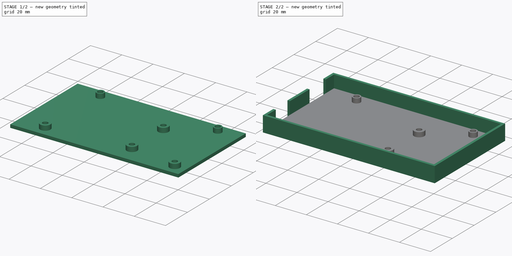
[diagram: build sequence overview — one tinted view per stage of 2, left to right]
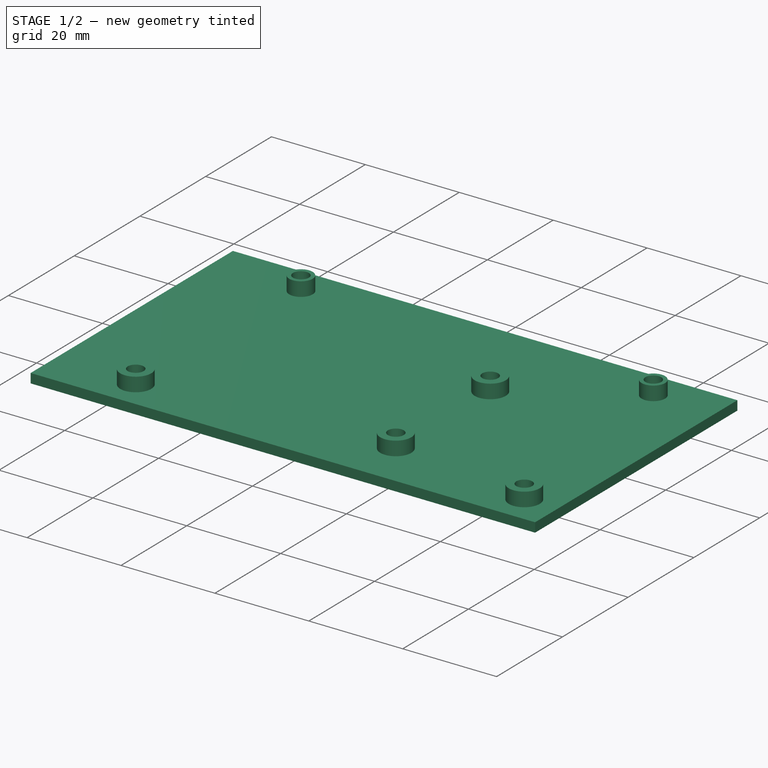
[diagram: stage 1 of 2 — iso view after this stage's code; geometry added in this stage tinted green]
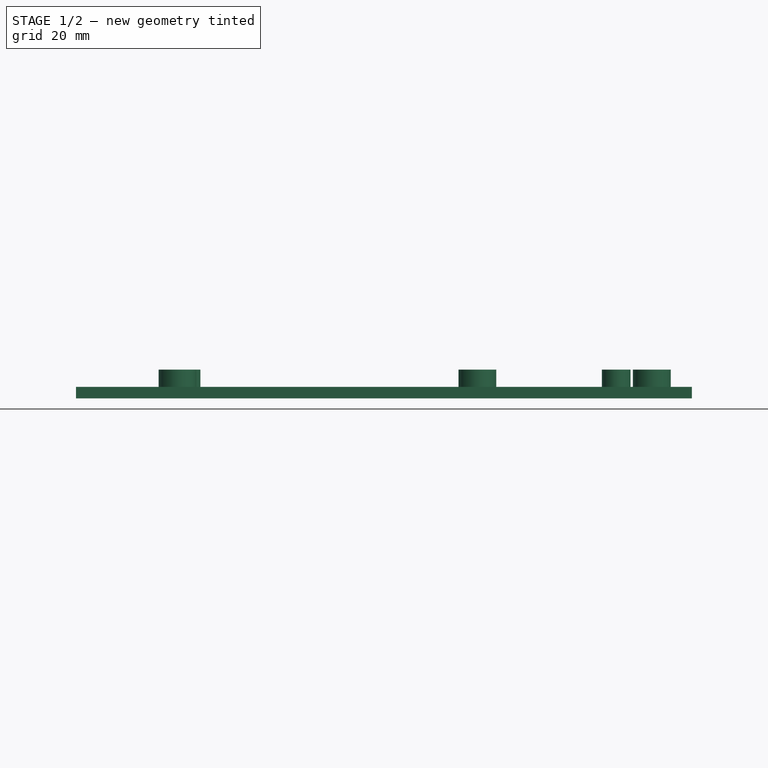
[diagram: stage 1 of 2 — front view after this stage's code; geometry added in this stage tinted green]
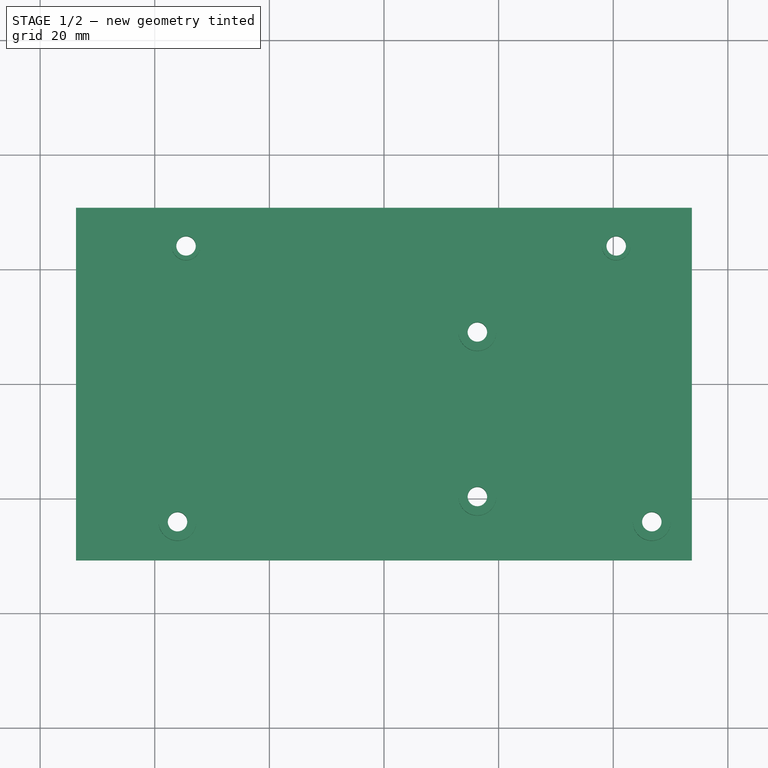
[diagram: stage 1 of 2 — top view after this stage's code; geometry added in this stage tinted green]
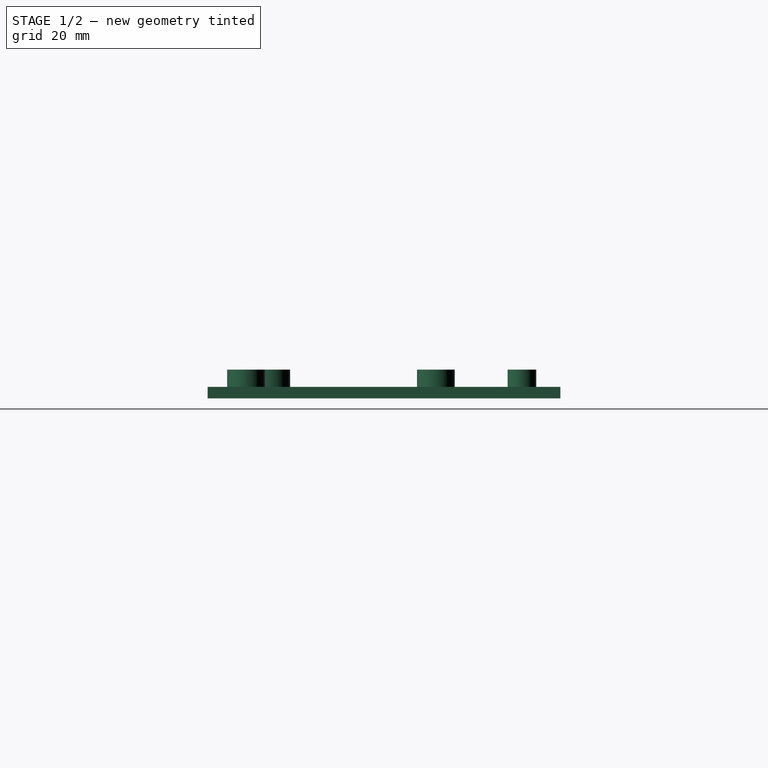
[diagram: stage 1 of 2 — right view after this stage's code; geometry added in this stage tinted green]
FCSTD DOCUMENT  (FreeCAD 0.19R24291 (Git))
Label: plate
License: All rights reserved
LicenseURL: http://en.wikipedia.org/wiki/All_rights_reserved
objects: Sketcher::SketchObject×3, PartDesign::Pad×3, PartDesign::Body×1
note: 10 computed .brp shape members not serialized (recipe doc carries the construction recipe); baked Part::Feature solids carry a one-line shape summary decoded from their .brp

FEATURE [Sketcher::SketchObject] Sketch
  FullyConstrained = true
  MapMode = 5
  Support = -> [XY_Plane]
  sketch-geometry (12):
    g0: Circle CenterX=46.725 CenterY=-24.0635 CenterZ=0 NormalX=0 NormalY=0 NormalZ=1 AngleXU=0 Radius=1.7
    g1: Circle CenterX=-36.025 CenterY=-24.0635 CenterZ=0 NormalX=0 NormalY=0 NormalZ=1 AngleXU=0 Radius=1.7
    g2: Circle CenterX=16.2907 CenterY=-19.6684 CenterZ=0 NormalX=0 NormalY=0 NormalZ=1 AngleXU=0 Radius=1.7
    g3: Circle CenterX=-34.5371 CenterY=24.0635 CenterZ=0 NormalX=0 NormalY=0 NormalZ=1 AngleXU=0 Radius=1.7
    g4: Circle CenterX=40.5129 CenterY=24.0635 CenterZ=0 NormalX=0 NormalY=0 NormalZ=1 AngleXU=0 Radius=1.7
    g5: Circle CenterX=16.2907 CenterY=9.04568 CenterZ=0 NormalX=0 NormalY=0 NormalZ=1 AngleXU=0 Radius=1.7
    g6: LineSegment StartX=-53.725 StartY=30.7635 StartZ=0 EndX=53.725 EndY=30.7635 EndZ=0
    g7: LineSegment StartX=53.725 StartY=30.7635 StartZ=0 EndX=53.725 EndY=-30.7635 EndZ=0
    g8: LineSegment StartX=53.725 StartY=-30.7635 StartZ=0 EndX=-53.725 EndY=-30.7635 EndZ=0
    g9: LineSegment StartX=-53.725 StartY=-30.7635 StartZ=0 EndX=-53.725 EndY=30.7635 EndZ=0
    g10: LineSegment StartX=-53.725 StartY=30.7635 StartZ=0 EndX=53.725 EndY=-30.7635 EndZ=0
    g11: LineSegment StartX=53.725 StartY=30.7635 StartZ=0 EndX=-53.725 EndY=-30.7635 EndZ=0
  constraints (35):
    c: Distance(g0,g1) = 82.75
    c: Distance(g0,g2) = 30.75
    c: Diameter(g1) = 3.4
    c: Distance(g3,g4) = 75.05
    c: Distance(g4,g5) = 28.5
    c: Equal(g0,g1)
    c: Equal(g1,g2)
    c: Equal(g2,g3)
    c: Equal(g3,g4)
    c: Equal(g4,g5)
    c: Distance(g5,g3) = 53
    c: Distance(g1,g3) = 48.15
    c: Distance(g0,g4) = 48.5263
    c: Distance(g2,g1) = 52.5
    c: Horizontal(g0,g1)
    c: Horizontal(g4,g3)
    c: Vertical(g2,g5)
    c: Coincident(g6,g7)
    c: Coincident(g7,g8)
    c: Coincident(g8,g9)
    c: Coincident(g9,g6)
    c: Horizontal(g6)
    c: Horizontal(g8)
    c: Vertical(g7)
    c: Vertical(g9)
    c: Distance(g0,g7) = 7
    c: Distance(g0,g8) = 6.7
    c: Distance(g1,g9) = 17.7
    c: Distance(g4,g6) = 6.7
    c: Coincident(g10,g6)
    c: Coincident(g10,g7)
    c: Coincident(g11,g6)
    c: Coincident(g11,g8)
    c: PointOnObject(g-1,g11)
    c: PointOnObject(g-1,g10)
FEATURE [PartDesign::Pad] Pad
  Direction = (1,1,1)
  Length = 2
  Length2 = 100
  Profile = -> Sketch
  Type = 0
FEATURE [Sketcher::SketchObject] Sketch001
  AttachmentOffset = pos=(0,0,2) rot=(0,0,1;0rad)
  FullyConstrained = true
  MapMode = 5
  Placement = pos=(0,0,2) rot=(0,0,1;0rad)
  Support = -> [XY_Plane]
  expr: Constraints[0] = Sketch.Constraints[0]
  expr: Constraints[1] = Sketch.Constraints[1]
  expr: Constraints[2] = Sketch.Constraints[2]
  expr: Constraints[10] = Sketch.Constraints[10]
  expr: Constraints[3] = Sketch.Constraints[3]
  expr: Constraints[4] = Sketch.Constraints[4]
  expr: Constraints[26] = Sketch.Constraints[26]
  expr: Constraints[11] = Sketch.Constraints[11]
  expr: Constraints[13] = Sketch.Constraints[13]
  expr: .AttachmentOffset.Base.z = Pad.Length
  expr: Constraints[25] = Sketch.Constraints[25]
  expr: Constraints[28] = Sketch.Constraints[28]
  expr: Constraints[27] = Sketch.Constraints[27]
  sketch-geometry (18):
    g0: Circle CenterX=46.725 CenterY=-24.0635 CenterZ=0 NormalX=0 NormalY=0 NormalZ=1 AngleXU=0 Radius=1.7
    g1: Circle CenterX=-36.025 CenterY=-24.0635 CenterZ=0 NormalX=0 NormalY=0 NormalZ=1 AngleXU=0 Radius=1.7
    g2: Circle CenterX=16.2907 CenterY=-19.6684 CenterZ=0 NormalX=0 NormalY=0 NormalZ=1 AngleXU=0 Radius=1.7
    g3: Circle CenterX=-34.5371 CenterY=24.0635 CenterZ=0 NormalX=0 NormalY=0 NormalZ=1 AngleXU=0 Radius=1.7
    g4: Circle CenterX=40.5129 CenterY=24.0635 CenterZ=0 NormalX=0 NormalY=0 NormalZ=1 AngleXU=0 Radius=1.7
    g5: Circle CenterX=16.2907 CenterY=9.04568 CenterZ=0 NormalX=0 NormalY=0 NormalZ=1 AngleXU=0 Radius=1.7
    g6: LineSegment StartX=-53.725 StartY=30.7635 StartZ=0 EndX=53.725 EndY=30.7635 EndZ=0
    g7: LineSegment StartX=53.725 StartY=30.7635 StartZ=0 EndX=53.725 EndY=-30.7635 EndZ=0
    g8: LineSegment StartX=53.725 StartY=-30.7635 StartZ=0 EndX=-53.725 EndY=-30.7635 EndZ=0
    g9: LineSegment StartX=-53.725 StartY=-30.7635 StartZ=0 EndX=-53.725 EndY=30.7635 EndZ=0
    g10: LineSegment StartX=-53.725 StartY=30.7635 StartZ=0 EndX=53.725 EndY=-30.7635 EndZ=0
    g11: LineSegment StartX=53.725 StartY=30.7635 StartZ=0 EndX=-53.725 EndY=-30.7635 EndZ=0
    g12: Circle CenterX=16.2907 CenterY=9.04568 CenterZ=0 NormalX=0 NormalY=0 NormalZ=1 AngleXU=0 Radius=3.3
    g13: Circle CenterX=40.5129 CenterY=24.0635 CenterZ=0 NormalX=0 NormalY=0 NormalZ=1 AngleXU=0 Radius=2.5
    g14: Circle CenterX=46.725 CenterY=-24.0635 CenterZ=0 NormalX=0 NormalY=0 NormalZ=1 AngleXU=0 Radius=3.3
    g15: Circle CenterX=16.2907 CenterY=-19.6684 CenterZ=0 NormalX=0 NormalY=0 NormalZ=1 AngleXU=0 Radius=3.3
    g16: Circle CenterX=-36.025 CenterY=-24.0635 CenterZ=0 NormalX=0 NormalY=0 NormalZ=1 AngleXU=0 Radius=3.3
    g17: Circle CenterX=-34.5371 CenterY=24.0635 CenterZ=0 NormalX=0 NormalY=0 NormalZ=1 AngleXU=0 Radius=2.5
  constraints (47):
    c: Distance(g0,g1) = 82.75
    c: Distance(g0,g2) = 30.75
    c: Diameter(g1) = 3.4
    c: Distance(g3,g4) = 75.05
    c: Distance(g4,g5) = 28.5
    c: Equal(g0,g1)
    c: Equal(g1,g2)
    c: Equal(g2,g3)
    c: Equal(g3,g4)
    c: Equal(g4,g5)
    c: Distance(g5,g3) = 53
    c: Distance(g1,g3) = 48.15
    c: Distance(g0,g4) = 48.5263
    c: Distance(g2,g1) = 52.5
    c: Horizontal(g0,g1)
    c: Horizontal(g4,g3)
    c: Vertical(g2,g5)
    c: Coincident(g6,g7)
    c: Coincident(g7,g8)
    c: Coincident(g8,g9)
    c: Coincident(g9,g6)
    c: Horizontal(g6)
    c: Horizontal(g8)
    c: Vertical(g7)
    c: Vertical(g9)
    c: Distance(g0,g7) = 7
    c: Distance(g0,g8) = 6.7
    c: Distance(g1,g9) = 17.7
    c: Distance(g4,g6) = 6.7
    c: Coincident(g10,g6)
    c: Coincident(g10,g7)
    c: Coincident(g11,g6)
    c: Coincident(g11,g8)
    c: PointOnObject(g-1,g11)
    c: PointOnObject(g-1,g10)
    c: Coincident(g12,g5)
    c: Coincident(g13,g4)
    c: Coincident(g14,g0)
    c: Coincident(g15,g2)
    c: Coincident(g16,g1)
    c: Coincident(g17,g3)
    c: Equal(g16,g15)
    c: Equal(g15,g12)
    c: Equal(g12,g14)
    c: Diameter(g12) = 6.6
    c: Equal(g13,g17)
    c: Diameter(g13) = 5
FEATURE [PartDesign::Pad] Pad001
  BaseFeature = -> Pad
  Direction = (1,1,1)
  Length = 3
  Length2 = 100
  Profile = -> Sketch001
  Type = 0
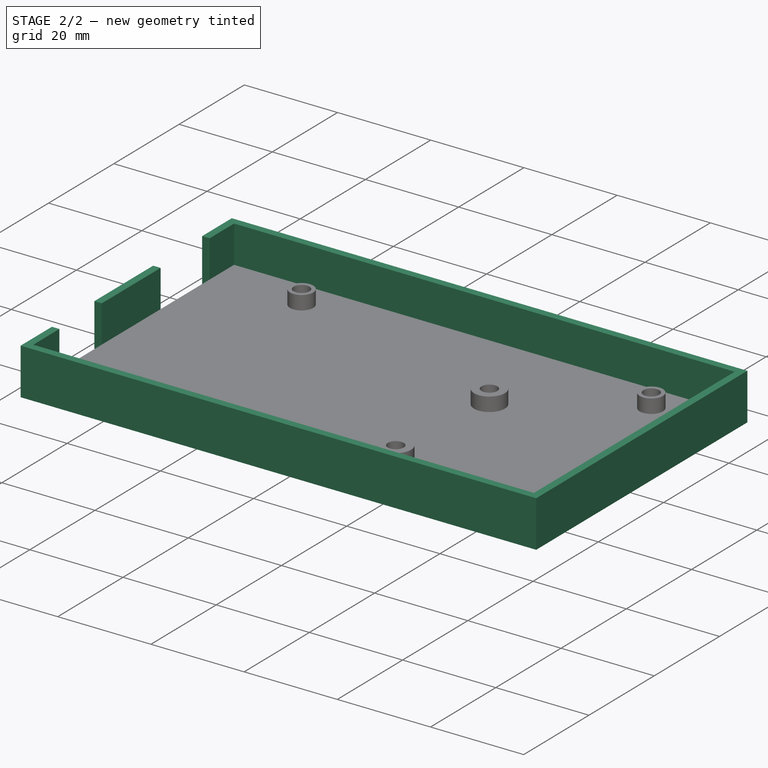
[diagram: stage 2 of 2 — iso view after this stage's code; geometry added in this stage tinted green]
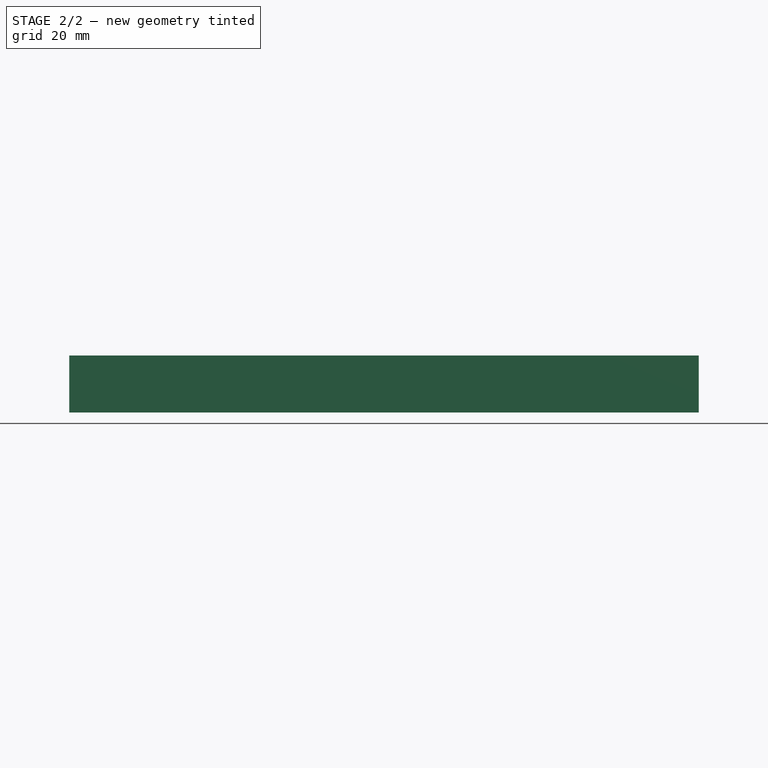
[diagram: stage 2 of 2 — front view after this stage's code; geometry added in this stage tinted green]
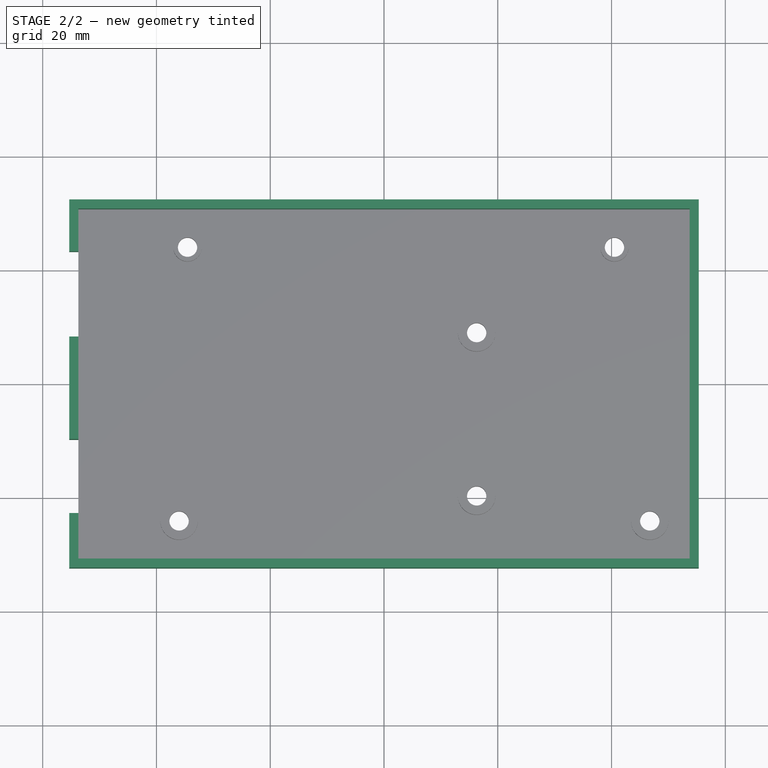
[diagram: stage 2 of 2 — top view after this stage's code; geometry added in this stage tinted green]
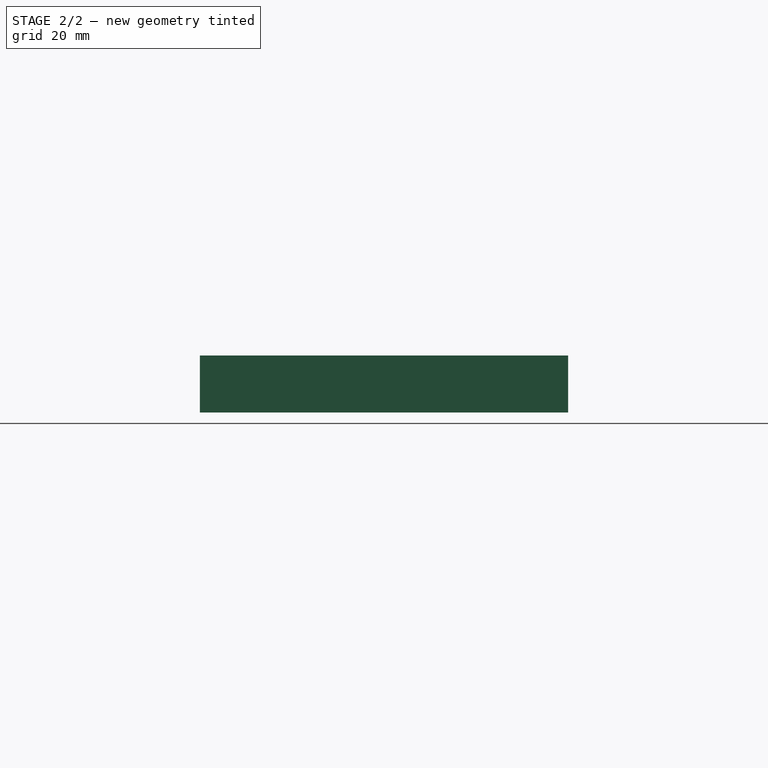
[diagram: stage 2 of 2 — right view after this stage's code; geometry added in this stage tinted green]
FEATURE [Sketcher::SketchObject] Sketch002
  FullyConstrained = true
  MapMode = 5
  Support = -> [XY_Plane]
  expr: Constraints[0] = Sketch.Constraints[0]
  expr: Constraints[1] = Sketch.Constraints[1]
  expr: Constraints[2] = Sketch.Constraints[2]
  expr: Constraints[10] = Sketch.Constraints[10]
  expr: Constraints[3] = Sketch.Constraints[3]
  expr: Constraints[4] = Sketch.Constraints[4]
  expr: Constraints[26] = Sketch.Constraints[26]
  expr: Constraints[11] = Sketch.Constraints[11]
  expr: Constraints[13] = Sketch.Constraints[13]
  expr: Constraints[25] = Sketch.Constraints[25]
  expr: Constraints[28] = Sketch.Constraints[28]
  expr: Constraints[27] = Sketch.Constraints[27]
  sketch-geometry (24):
    g0: Circle CenterX=46.725 CenterY=-24.0635 CenterZ=0 NormalX=0 NormalY=0 NormalZ=1 AngleXU=0 Radius=1.7
    g1: Circle CenterX=-36.025 CenterY=-24.0635 CenterZ=0 NormalX=0 NormalY=0 NormalZ=1 AngleXU=0 Radius=1.7
    g2: Circle CenterX=16.2907 CenterY=-19.6684 CenterZ=0 NormalX=0 NormalY=0 NormalZ=1 AngleXU=0 Radius=1.7
    g3: Circle CenterX=-34.5371 CenterY=24.0635 CenterZ=0 NormalX=0 NormalY=0 NormalZ=1 AngleXU=0 Radius=1.7
    g4: Circle CenterX=40.5129 CenterY=24.0635 CenterZ=0 NormalX=0 NormalY=0 NormalZ=1 AngleXU=0 Radius=1.7
    g5: Circle CenterX=16.2907 CenterY=9.04568 CenterZ=0 NormalX=0 NormalY=0 NormalZ=1 AngleXU=0 Radius=1.7
    g6: LineSegment StartX=-53.725 StartY=30.7635 StartZ=0 EndX=53.725 EndY=30.7635 EndZ=0
    g7: LineSegment StartX=53.725 StartY=30.7635 StartZ=0 EndX=53.725 EndY=-30.7635 EndZ=0
    g8: LineSegment StartX=53.725 StartY=-30.7635 StartZ=0 EndX=-53.725 EndY=-30.7635 EndZ=0
    g9: LineSegment StartX=-53.725 StartY=-30.7635 StartZ=0 EndX=-53.725 EndY=-22.7635 EndZ=0
    g10: LineSegment StartX=-53.725 StartY=30.7635 StartZ=0 EndX=53.725 EndY=-30.7635 EndZ=0
    g11: LineSegment StartX=53.725 StartY=30.7635 StartZ=0 EndX=-53.725 EndY=-30.7635 EndZ=0
    g12: LineSegment StartX=-55.325 StartY=32.3635 StartZ=0 EndX=55.325 EndY=32.3635 EndZ=0
    g13: LineSegment StartX=55.325 StartY=32.3635 StartZ=0 EndX=55.325 EndY=-32.3635 EndZ=0
    g14: LineSegment StartX=55.325 StartY=-32.3635 StartZ=0 EndX=-55.325 EndY=-32.3635 EndZ=0
    g15: LineSegment StartX=-55.325 StartY=-32.3635 StartZ=0 EndX=-55.325 EndY=-22.7635 EndZ=0
    g16: LineSegment StartX=-55.325 StartY=-22.7635 StartZ=0 EndX=-53.725 EndY=-22.7635 EndZ=0
    g17: LineSegment StartX=-55.325 StartY=-9.7635 StartZ=0 EndX=-53.725 EndY=-9.7635 EndZ=0
    g18: LineSegment StartX=-55.325 StartY=8.2635 StartZ=0 EndX=-53.725 EndY=8.2635 EndZ=0
    g19: LineSegment StartX=-55.325 StartY=23.2635 StartZ=0 EndX=-53.725 EndY=23.2635 EndZ=0
    g20: LineSegment StartX=-53.725 StartY=23.2635 StartZ=0 EndX=-53.725 EndY=30.7635 EndZ=0
    g21: LineSegment StartX=-55.325 StartY=23.2635 StartZ=0 EndX=-55.325 EndY=32.3635 EndZ=0
    g22: LineSegment StartX=-55.325 StartY=-9.7635 StartZ=0 EndX=-55.325 EndY=8.2635 EndZ=0
    g23: LineSegment StartX=-53.725 StartY=-9.7635 StartZ=0 EndX=-53.725 EndY=8.2635 EndZ=0
  constraints (67):
    c: Distance(g0,g1) = 82.75
    c: Distance(g0,g2) = 30.75
    c: Diameter(g1) = 3.4
    c: Distance(g3,g4) = 75.05
    c: Distance(g4,g5) = 28.5
    c: Equal(g0,g1)
    c: Equal(g1,g2)
    c: Equal(g2,g3)
    c: Equal(g3,g4)
    c: Equal(g4,g5)
    c: Distance(g5,g3) = 53
    c: Distance(g1,g3) = 48.15
    c: Distance(g0,g4) = 48.5263
    c: Distance(g2,g1) = 52.5
    c: Horizontal(g0,g1)
    c: Horizontal(g4,g3)
    c: Vertical(g2,g5)
    c: Coincident(g6,g7)
    c: Coincident(g7,g8)
    c: Coincident(g8,g9)
    c: Coincident(g20,g6)
    c: Horizontal(g6)
    c: Horizontal(g8)
    c: Vertical(g7)
    c: Vertical(g9)
    c: Distance(g0,g7) = 7
    c: Distance(g0,g8) = 6.7
    c: Distance(g1,g9) = 17.7
    c: Distance(g4,g6) = 6.7
    c: Coincident(g10,g6)
    c: Coincident(g10,g7)
    c: Coincident(g11,g6)
    c: Coincident(g11,g8)
    c: PointOnObject(g-1,g11)
    c: PointOnObject(g-1,g10)
    c: Coincident(g12,g13)
    c: Coincident(g13,g14)
    c: Coincident(g14,g15)
    c: Coincident(g21,g12)
    c: Horizontal(g12)
    c: Horizontal(g14)
    c: Vertical(g13)
    c: Vertical(g15)
    c: Distance(g7,g13) = 1.6
    c: Distance(g7,g14) = 1.6
    c: Distance(g6,g12) = 1.6
    c: Distance(g6,g15) = 1.6
    c: Horizontal(g16)
    c: Horizontal(g17)
    c: Horizontal(g18)
    c: Horizontal(g19)
    c: Distance(g8,g16) = 8
    c: Distance(g16,g17) = 13
    c: Distance(g6,g19) = 7.5
    c: Distance(g18,g19) = 15
    c: Coincident(g23,g18)
    c: Coincident(g20,g19)
    c: Tangent(g9,g20)
    c: Coincident(g22,g18)
    c: Coincident(g21,g19)
    c: Tangent(g15,g21)
    c: Coincident(g15,g16)
    c: Coincident(g22,g17)
    c: Tangent(g15,g22)
    c: Coincident(g9,g16)
    c: Coincident(g23,g17)
    c: Tangent(g9,g23)
FEATURE [PartDesign::Pad] Pad002
  BaseFeature = -> Pad001
  Direction = (1,1,1)
  Length = 10
  Length2 = 100
  Profile = -> Sketch002
  Type = 0
FEATURE [PartDesign::Body] Body
  Group = -> [Sketch,Pad,Sketch001,Pad001,Sketch002,Pad002]
  Origin = -> Origin
  Tip = -> Pad002
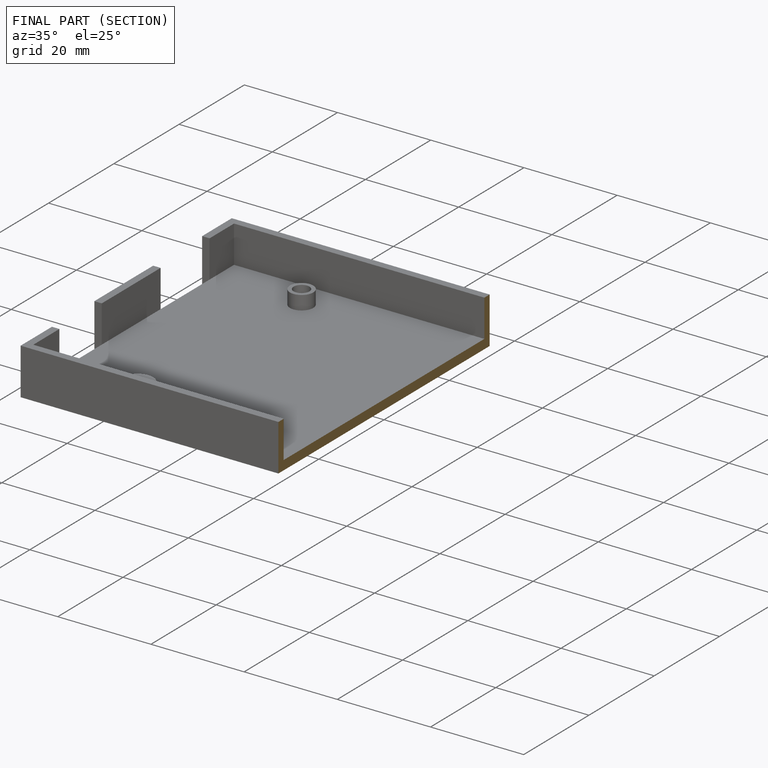
[diagram: finished part — half-section view (interior)]
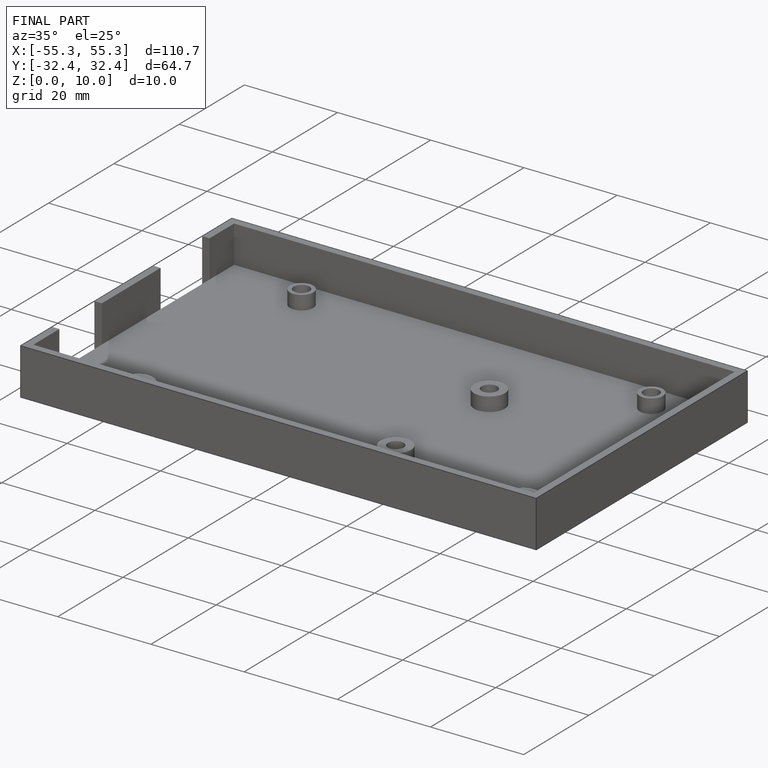
[diagram: finished part — iso view with bounding-box wireframe]
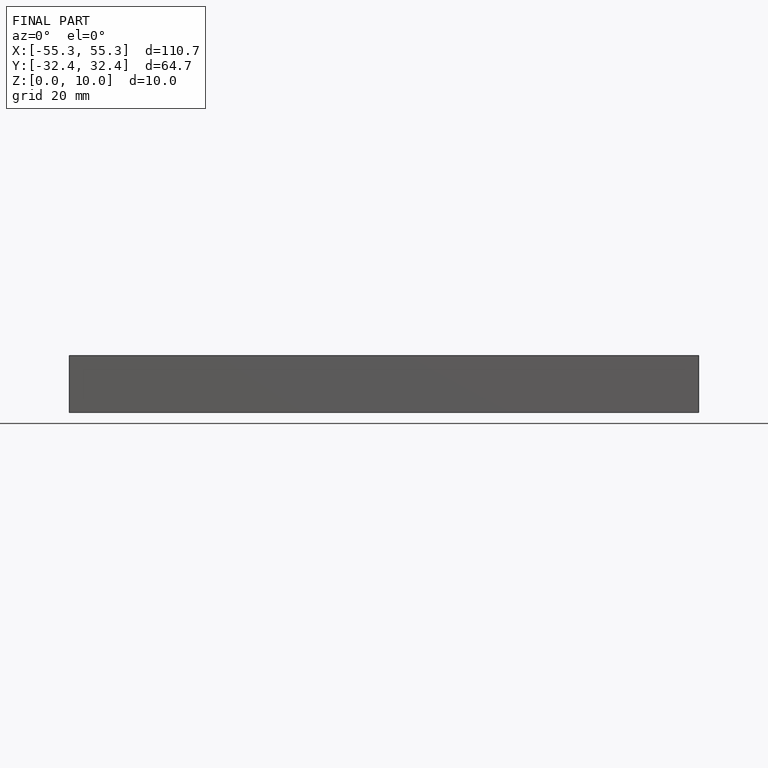
[diagram: finished part — front view with bounding-box wireframe]
